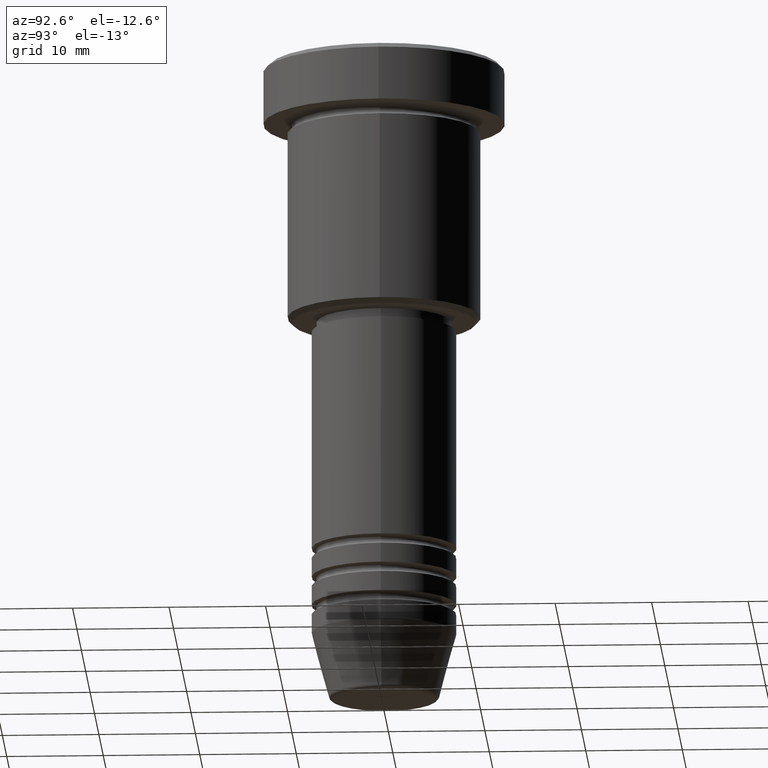
[diagram: clean part render]
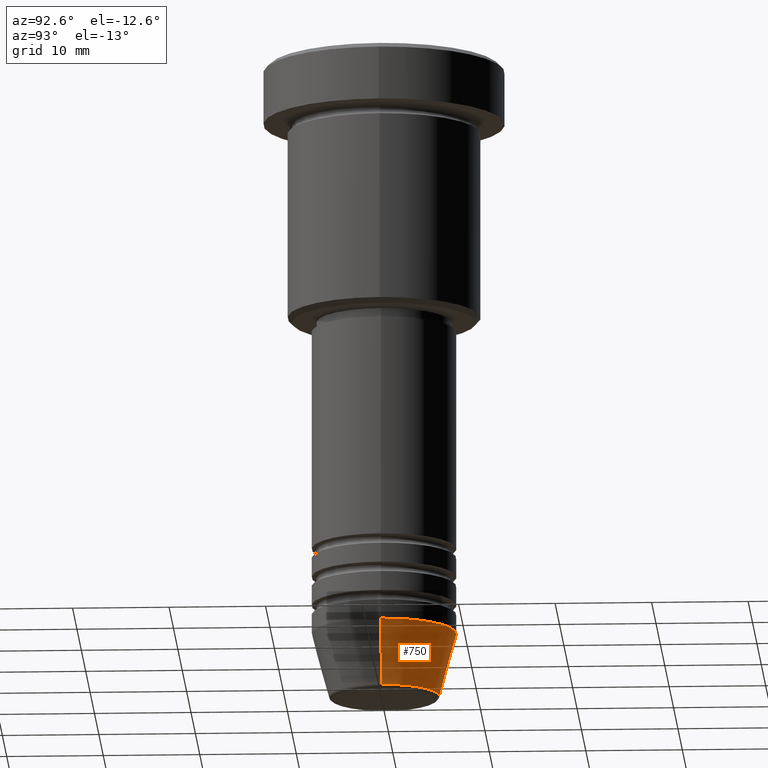
[diagram: same view with one face highlighted and labeled with its STEP entity id]
A machine part, auxiliary view. The second image highlights one B-rep face of the part: STEP entity #750.
In plain terms, the highlighted conical surface has half-angle 15 deg.
Its self-contained STEP definition (entity closure, byte-faithful):
#4 = EDGE_CURVE ( 'NONE', #339, #174, #767, .T. ) ;
#19 = CARTESIAN_POINT ( 'NONE',  ( 0.000000000000000000, 0.000000000000000000, -60.00000000000000000 ) ) ;
#39 = CIRCLE ( 'NONE', #547, 5.723655072137191269 ) ;
#142 = VERTEX_POINT ( 'NONE', #418 ) ;
#143 = DIRECTION ( 'NONE',  ( 1.000000000000000000, 0.000000000000000000, 0.000000000000000000 ) ) ;
#173 = DIRECTION ( 'NONE',  ( -0.000000000000000000, -0.000000000000000000, 1.000000000000000000 ) ) ;
#174 = VERTEX_POINT ( 'NONE', #492 ) ;
#263 = AXIS2_PLACEMENT_3D ( 'NONE', #503, #428, #143 ) ;
#307 = CARTESIAN_POINT ( 'NONE',  ( -5.723655072137190380, 8.097153428560735915E-16, -66.62940952255127058 ) ) ;
#339 = VERTEX_POINT ( 'NONE', #1096 ) ;
#357 = ORIENTED_EDGE ( 'NONE', *, *, #4, .F. ) ;
#368 = CARTESIAN_POINT ( 'NONE',  ( -7.500000000000000000, 9.184850993605147944E-16, -60.00000000000000000 ) ) ;
#371 = CIRCLE ( 'NONE', #839, 7.500000000000000000 ) ;
#397 = VERTEX_POINT ( 'NONE', #307 ) ;
#418 = CARTESIAN_POINT ( 'NONE',  ( -7.500000000000000000, 9.184850993605147944E-16, -60.00000000000000000 ) ) ;
#428 = DIRECTION ( 'NONE',  ( -0.000000000000000000, -0.000000000000000000, 1.000000000000000000 ) ) ;
#449 = DIRECTION ( 'NONE',  ( -0.2588190451025213501, 3.169619151431772337E-17, 0.9659258262890680902 ) ) ;
#459 = CARTESIAN_POINT ( 'NONE',  ( 7.500000000000000000, 0.000000000000000000, -60.00000000000000000 ) ) ;
#492 = CARTESIAN_POINT ( 'NONE',  ( 7.500000000000000000, 0.000000000000000000, -60.00000000000000000 ) ) ;
#503 = CARTESIAN_POINT ( 'NONE',  ( 0.000000000000000000, 0.000000000000000000, -60.00000000000000000 ) ) ;
#513 = EDGE_CURVE ( 'NONE', #174, #142, #371, .T. ) ;
#547 = AXIS2_PLACEMENT_3D ( 'NONE', #1115, #551, #620 ) ;
#551 = DIRECTION ( 'NONE',  ( -0.000000000000000000, -0.000000000000000000, 1.000000000000000000 ) ) ;
#559 = ORIENTED_EDGE ( 'NONE', *, *, #513, .F. ) ;
#620 = DIRECTION ( 'NONE',  ( 1.000000000000000000, 0.000000000000000000, 0.000000000000000000 ) ) ;
#638 = LINE ( 'NONE', #368, #707 ) ;
#672 = DIRECTION ( 'NONE',  ( 0.2588190451025213501, 0.000000000000000000, 0.9659258262890680902 ) ) ;
#707 = VECTOR ( 'NONE', #449, 1000.000000000000000 ) ;
#750 = ADVANCED_FACE ( 'NONE', ( #873 ), #1094, .T. ) ;
#765 = EDGE_CURVE ( 'NONE', #339, #397, #39, .T. ) ;
#767 = LINE ( 'NONE', #459, #800 ) ;
#800 = VECTOR ( 'NONE', #672, 1000.000000000000000 ) ;
#839 = AXIS2_PLACEMENT_3D ( 'NONE', #19, #173, #912 ) ;
#854 = EDGE_CURVE ( 'NONE', #397, #142, #638, .T. ) ;
#873 = FACE_OUTER_BOUND ( 'NONE', #900, .T. ) ;
#900 = EDGE_LOOP ( 'NONE', ( #950, #1050, #559, #357 ) ) ;
#912 = DIRECTION ( 'NONE',  ( 1.000000000000000000, 0.000000000000000000, 0.000000000000000000 ) ) ;
#950 = ORIENTED_EDGE ( 'NONE', *, *, #765, .T. ) ;
#1050 = ORIENTED_EDGE ( 'NONE', *, *, #854, .T. ) ;
#1094 = CONICAL_SURFACE ( 'NONE', #263, 7.500000000000000000, 0.2617993877991500740 ) ;
#1096 = CARTESIAN_POINT ( 'NONE',  ( 5.723655072137191269, 0.000000000000000000, -66.62940952255127058 ) ) ;
#1115 = CARTESIAN_POINT ( 'NONE',  ( 0.000000000000000000, 0.000000000000000000, -66.62940952255127058 ) ) ;